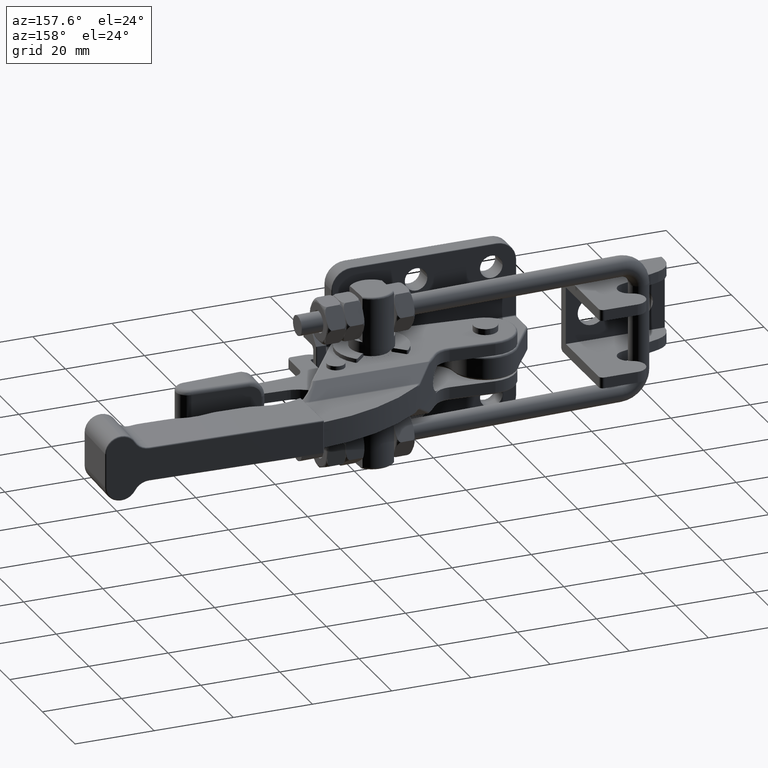
[diagram: clean part render]
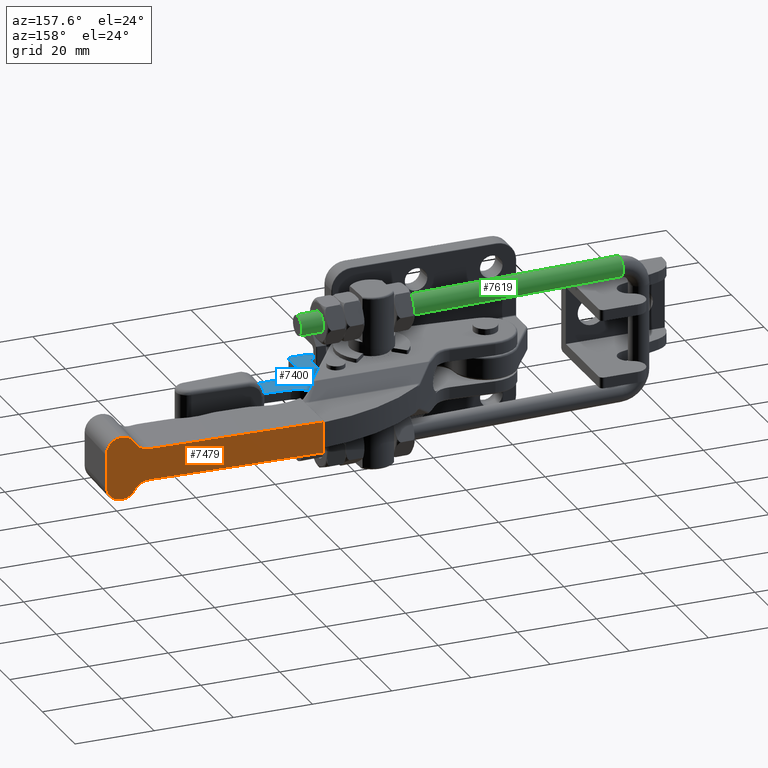
[diagram: same view with three faces highlighted in distinct colors, each labeled with its STEP entity id]
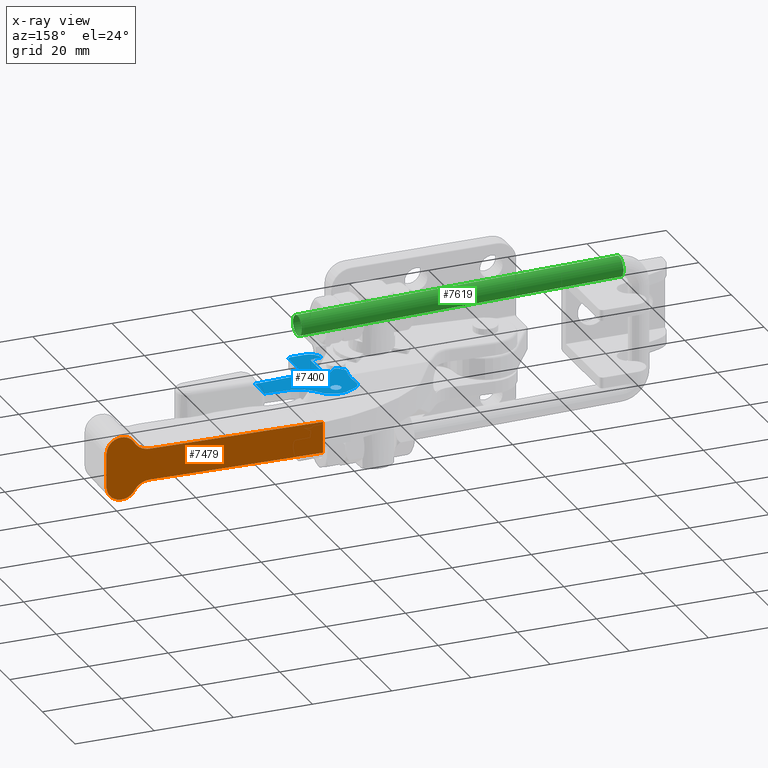
[diagram: x-ray of the same camera — body ghosted, the three highlighted faces saturated]
A machine part, auxiliary view with three faces highlighted in distinct colors.
The next image is the same camera in x-ray (body ghosted, the three faces saturated) — at least one of them is partly hidden behind the body in this view.
Their STEP definitions:

[orange] entity #7479 — the highlighted planar face has unit normal (0.0279, 0.9996, 0).
#640=PLANE('',#8269);
#969=LINE('',#16942,#1384);
#970=LINE('',#16947,#1385);
#971=LINE('',#16949,#1386);
#972=LINE('',#16955,#1387);
#973=LINE('',#16959,#1388);
#974=LINE('',#16963,#1389);
#1384=VECTOR('',#10108,7.9);
#1385=VECTOR('',#10115,43.4044957552724);
#1386=VECTOR('',#10116,43.4044957553423);
#1387=VECTOR('',#10121,0.0717967697818654);
#1388=VECTOR('',#10124,8.5);
#1389=VECTOR('',#10127,0.0717967697818654);
#1993=FACE_OUTER_BOUND('',#2525,.T.);
#2525=EDGE_LOOP('',(#6298,#6299,#6300,#6301,#6302,#6303,#6304,#6305,#6306,
#6307,#6308,#6309));
#3032=CIRCLE('',#8270,4.3);
#3033=CIRCLE('',#8271,3.7);
#3034=CIRCLE('',#8272,3.7);
#3035=CIRCLE('',#8273,3.7);
#3036=CIRCLE('',#8274,3.7);
#3037=CIRCLE('',#8275,4.3);
#3662=VERTEX_POINT('',#16940);
#3663=VERTEX_POINT('',#16941);
#3664=VERTEX_POINT('',#16946);
#3665=VERTEX_POINT('',#16948);
#3666=VERTEX_POINT('',#16950);
#3667=VERTEX_POINT('',#16952);
#3668=VERTEX_POINT('',#16954);
#3669=VERTEX_POINT('',#16956);
#3670=VERTEX_POINT('',#16958);
#3671=VERTEX_POINT('',#16960);
#3672=VERTEX_POINT('',#16962);
#3673=VERTEX_POINT('',#16964);
#4572=EDGE_CURVE('',#3662,#3663,#969,.T.);
#4575=EDGE_CURVE('',#3663,#3664,#970,.T.);
#4576=EDGE_CURVE('',#3665,#3662,#971,.T.);
#4577=EDGE_CURVE('',#3666,#3665,#3032,.T.);
#4578=EDGE_CURVE('',#3667,#3666,#3033,.T.);
#4579=EDGE_CURVE('',#3668,#3667,#972,.T.);
#4580=EDGE_CURVE('',#3669,#3668,#3034,.T.);
#4581=EDGE_CURVE('',#3670,#3669,#973,.T.);
#4582=EDGE_CURVE('',#3671,#3670,#3035,.T.);
#4583=EDGE_CURVE('',#3672,#3671,#974,.T.);
#4584=EDGE_CURVE('',#3673,#3672,#3036,.T.);
#4585=EDGE_CURVE('',#3664,#3673,#3037,.T.);
#6298=ORIENTED_EDGE('',*,*,#4575,.F.);
#6299=ORIENTED_EDGE('',*,*,#4572,.F.);
#6300=ORIENTED_EDGE('',*,*,#4576,.F.);
#6301=ORIENTED_EDGE('',*,*,#4577,.F.);
#6302=ORIENTED_EDGE('',*,*,#4578,.F.);
#6303=ORIENTED_EDGE('',*,*,#4579,.F.);
#6304=ORIENTED_EDGE('',*,*,#4580,.F.);
#6305=ORIENTED_EDGE('',*,*,#4581,.F.);
#6306=ORIENTED_EDGE('',*,*,#4582,.F.);
#6307=ORIENTED_EDGE('',*,*,#4583,.F.);
#6308=ORIENTED_EDGE('',*,*,#4584,.F.);
#6309=ORIENTED_EDGE('',*,*,#4585,.F.);
#7479=ADVANCED_FACE('',(#1993),#640,.T.);
#8269=AXIS2_PLACEMENT_3D('',#16945,#10113,#10114);
#8270=AXIS2_PLACEMENT_3D('',#16951,#10117,#10118);
#8271=AXIS2_PLACEMENT_3D('',#16953,#10119,#10120);
#8272=AXIS2_PLACEMENT_3D('',#16957,#10122,#10123);
#8273=AXIS2_PLACEMENT_3D('',#16961,#10125,#10126);
#8274=AXIS2_PLACEMENT_3D('',#16965,#10128,#10129);
#8275=AXIS2_PLACEMENT_3D('',#16966,#10130,#10131);
#10108=DIRECTION('',(0.,0.,-1.));
#10113=DIRECTION('center_axis',(0.033459756340951,0.99944006558953,0.));
#10114=DIRECTION('ref_axis',(0.99944006558953,-0.0334597563409497,0.));
#10115=DIRECTION('',(0.99944006558953,-0.033459756340951,-7.69832805450923E-12));
#10116=DIRECTION('',(-0.99944006558953,0.033459756340951,-3.04647407040009E-12));
#10117=DIRECTION('center_axis',(0.033459756340951,0.99944006558953,0.));
#10118=DIRECTION('ref_axis',(0.865540486390921,-0.0289769989967188,-0.499999999947312));
#10119=DIRECTION('center_axis',(-0.033459756340951,-0.99944006558953,0.));
#10120=DIRECTION('ref_axis',(0.,0.,1.));
#10121=DIRECTION('',(-0.999440065589528,0.0334597563410209,8.65951067403024E-14));
#10122=DIRECTION('center_axis',(-0.033459756340951,-0.99944006558953,0.));
#10123=DIRECTION('ref_axis',(0.99944006558953,-0.033459756340951,1.99240023878706E-14));
#10124=DIRECTION('',(0.,0.,1.));
#10125=DIRECTION('center_axis',(-0.033459756340951,-0.99944006558953,0.));
#10126=DIRECTION('ref_axis',(0.,0.,-1.));
#10127=DIRECTION('',(0.999440065589528,-0.0334597563410209,4.57716992770213E-13));
#10128=DIRECTION('center_axis',(-0.033459756340951,-0.99944006558953,0.));
#10129=DIRECTION('ref_axis',(-0.865540486501267,0.0289769990004131,-0.499999999756081));
#10130=DIRECTION('center_axis',(0.033459756340951,0.99944006558953,0.));
#10131=DIRECTION('ref_axis',(0.,0.,1.));
#16940=CARTESIAN_POINT('',(53.02818121914,28.51133362947,3.95));
#16941=CARTESIAN_POINT('',(53.02818121914,28.51133362947,-3.95));
#16942=CARTESIAN_POINT('',(53.02818121914,28.51133362947,3.95));
#16945=CARTESIAN_POINT('Origin',(107.4022140252,26.69097245764,-6.65));
#16946=CARTESIAN_POINT('',(96.40837330367,27.0590297774,-3.950000000334));
#16947=CARTESIAN_POINT('',(53.02818121914,28.51133362947,-3.95));
#16948=CARTESIAN_POINT('',(96.40837330374,27.0590297774,3.95));
#16949=CARTESIAN_POINT('',(96.40837330371,27.0590297774,3.950000000132));
#16950=CARTESIAN_POINT('',(100.1301973952,26.93442868171,6.100000000226));
#16951=CARTESIAN_POINT('Origin',(96.40837330374,27.0590297774,8.25));
#16952=CARTESIAN_POINT('',(103.3326971946,26.82721378543,7.95));
#16953=CARTESIAN_POINT('Origin',(103.3326971946,26.82721378543,4.25));
#16954=CARTESIAN_POINT('',(103.4044537629,26.82481148301,7.95));
#16955=CARTESIAN_POINT('',(103.4044537629,26.82481148301,7.95));
#16956=CARTESIAN_POINT('',(107.1023820056,26.70101038455,4.25));
#16957=CARTESIAN_POINT('Origin',(103.4044537629,26.82481148301,4.25));
#16958=CARTESIAN_POINT('',(107.1023820056,26.70101038455,-4.25));
#16959=CARTESIAN_POINT('',(107.1023820056,26.70101038455,-4.25));
#16960=CARTESIAN_POINT('',(103.4044537629,26.82481148301,-7.95));
#16961=CARTESIAN_POINT('Origin',(103.4044537629,26.82481148301,-4.25));
#16962=CARTESIAN_POINT('',(103.3326971946,26.82721378543,-7.95));
#16963=CARTESIAN_POINT('',(103.3326971946,26.82721378543,-7.95));
#16964=CARTESIAN_POINT('',(100.130197394751,26.9344286817277,-6.09999999940768));
#16965=CARTESIAN_POINT('Origin',(103.3326971946,26.82721378543,-4.25));
#16966=CARTESIAN_POINT('Origin',(96.40837330374,27.0590297774,-8.25));

[blue] entity #7400 — the highlighted planar face has unit normal (0, -0, 1).
#336=ELLIPSE('',#8128,0.931680394189339,0.86962262095289);
#337=ELLIPSE('',#8129,1.07424007220487,1.03544217802055);
#391=FACE_BOUND('',#2430,.T.);
#606=PLANE('',#8127);
#859=LINE('',#13940,#1274);
#860=LINE('',#13944,#1275);
#861=LINE('',#13946,#1276);
#862=LINE('',#13948,#1277);
#863=LINE('',#13952,#1278);
#864=LINE('',#13954,#1279);
#865=LINE('',#13958,#1280);
#866=LINE('',#13966,#1281);
#867=LINE('',#13970,#1282);
#868=LINE('',#13974,#1283);
#869=LINE('',#13978,#1284);
#870=LINE('',#13980,#1285);
#871=LINE('',#13982,#1286);
#872=LINE('',#13986,#1287);
#873=LINE('',#13990,#1288);
#874=LINE('',#13994,#1289);
#875=LINE('',#13998,#1290);
#876=LINE('',#14000,#1291);
#877=LINE('',#14002,#1292);
#878=LINE('',#14003,#1293);
#1274=VECTOR('',#9722,5.81787995337108);
#1275=VECTOR('',#9725,5.66395595321554);
#1276=VECTOR('',#9726,0.0500002441401112);
#1277=VECTOR('',#9727,0.871001100207913);
#1278=VECTOR('',#9730,2.69563757804621);
#1279=VECTOR('',#9731,2.5000000000007);
#1280=VECTOR('',#9734,2.60046959183549);
#1281=VECTOR('',#9741,1.39076461061198);
#1282=VECTOR('',#9744,1.50000000000237);
#1283=VECTOR('',#9747,7.195121135286);
#1284=VECTOR('',#9750,0.0825007557231912);
#1285=VECTOR('',#9751,0.0980171403285755);
#1286=VECTOR('',#9752,2.);
#1287=VECTOR('',#9755,0.912785653911317);
#1288=VECTOR('',#9758,3.3859652546343);
#1289=VECTOR('',#9761,6.52572045008);
#1290=VECTOR('',#9764,3.07121529801118);
#1291=VECTOR('',#9765,0.879420633335287);
#1292=VECTOR('',#9766,0.0502709366243459);
#1293=VECTOR('',#9767,5.81635751149553);
#1914=FACE_OUTER_BOUND('',#2429,.T.);
#2429=EDGE_LOOP('',(#5888,#5889,#5890,#5891,#5892,#5893,#5894,#5895,#5896,
#5897,#5898,#5899,#5900,#5901,#5902,#5903,#5904,#5905,#5906,#5907,#5908,
#5909,#5910,#5911,#5912,#5913,#5914,#5915,#5916,#5917,#5918,#5919,#5920,
#5921));
#2430=EDGE_LOOP('',(#5922));
#2967=CIRCLE('',#8126,1.3);
#2968=CIRCLE('',#8130,8.);
#2969=CIRCLE('',#8131,3.510682513192);
#2970=CIRCLE('',#8132,3.);
#2971=CIRCLE('',#8133,15.);
#2972=CIRCLE('',#8134,1.);
#2973=CIRCLE('',#8135,1.);
#2974=CIRCLE('',#8136,1.025101473885);
#2975=CIRCLE('',#8137,0.5);
#2976=CIRCLE('',#8138,0.5);
#2977=CIRCLE('',#8139,3.);
#2978=CIRCLE('',#8140,1.);
#2979=CIRCLE('',#8141,3.);
#3522=VERTEX_POINT('',#13933);
#3523=VERTEX_POINT('',#13936);
#3524=VERTEX_POINT('',#13937);
#3525=VERTEX_POINT('',#13939);
#3526=VERTEX_POINT('',#13941);
#3527=VERTEX_POINT('',#13943);
#3528=VERTEX_POINT('',#13945);
#3529=VERTEX_POINT('',#13947);
#3530=VERTEX_POINT('',#13949);
#3531=VERTEX_POINT('',#13951);
#3532=VERTEX_POINT('',#13953);
#3533=VERTEX_POINT('',#13955);
#3534=VERTEX_POINT('',#13957);
#3535=VERTEX_POINT('',#13959);
#3536=VERTEX_POINT('',#13961);
#3537=VERTEX_POINT('',#13963);
#3538=VERTEX_POINT('',#13965);
#3539=VERTEX_POINT('',#13967);
#3540=VERTEX_POINT('',#13969);
#3541=VERTEX_POINT('',#13971);
#3542=VERTEX_POINT('',#13973);
#3543=VERTEX_POINT('',#13975);
#3544=VERTEX_POINT('',#13977);
#3545=VERTEX_POINT('',#13979);
#3546=VERTEX_POINT('',#13981);
#3547=VERTEX_POINT('',#13983);
#3548=VERTEX_POINT('',#13985);
#3549=VERTEX_POINT('',#13987);
#3550=VERTEX_POINT('',#13989);
#3551=VERTEX_POINT('',#13991);
#3552=VERTEX_POINT('',#13993);
#3553=VERTEX_POINT('',#13995);
#3554=VERTEX_POINT('',#13997);
#3555=VERTEX_POINT('',#13999);
#3556=VERTEX_POINT('',#14001);
#4362=EDGE_CURVE('',#3522,#3522,#2967,.T.);
#4363=EDGE_CURVE('',#3523,#3524,#336,.T.);
#4364=EDGE_CURVE('',#3523,#3525,#859,.T.);
#4365=EDGE_CURVE('',#3526,#3525,#337,.T.);
#4366=EDGE_CURVE('',#3527,#3526,#860,.T.);
#4367=EDGE_CURVE('',#3527,#3528,#861,.T.);
#4368=EDGE_CURVE('',#3528,#3529,#862,.T.);
#4369=EDGE_CURVE('',#3529,#3530,#2968,.T.);
#4370=EDGE_CURVE('',#3530,#3531,#863,.T.);
#4371=EDGE_CURVE('',#3531,#3532,#864,.T.);
#4372=EDGE_CURVE('',#3532,#3533,#2969,.T.);
#4373=EDGE_CURVE('',#3533,#3534,#865,.T.);
#4374=EDGE_CURVE('',#3534,#3535,#2970,.T.);
#4375=EDGE_CURVE('',#3535,#3536,#2971,.T.);
#4376=EDGE_CURVE('',#3536,#3537,#2972,.T.);
#4377=EDGE_CURVE('',#3537,#3538,#866,.T.);
#4378=EDGE_CURVE('',#3538,#3539,#2973,.T.);
#4379=EDGE_CURVE('',#3539,#3540,#867,.T.);
#4380=EDGE_CURVE('',#3540,#3541,#2974,.T.);
#4381=EDGE_CURVE('',#3541,#3542,#868,.T.);
#4382=EDGE_CURVE('',#3542,#3543,#2975,.T.);
#4383=EDGE_CURVE('',#3543,#3544,#869,.T.);
#4384=EDGE_CURVE('',#3544,#3545,#870,.T.);
#4385=EDGE_CURVE('',#3545,#3546,#871,.T.);
#4386=EDGE_CURVE('',#3546,#3547,#2976,.T.);
#4387=EDGE_CURVE('',#3547,#3548,#872,.T.);
#4388=EDGE_CURVE('',#3548,#3549,#2977,.T.);
#4389=EDGE_CURVE('',#3549,#3550,#873,.T.);
#4390=EDGE_CURVE('',#3550,#3551,#2978,.T.);
#4391=EDGE_CURVE('',#3551,#3552,#874,.T.);
#4392=EDGE_CURVE('',#3552,#3553,#2979,.T.);
#4393=EDGE_CURVE('',#3553,#3554,#875,.T.);
#4394=EDGE_CURVE('',#3554,#3555,#876,.T.);
#4395=EDGE_CURVE('',#3555,#3556,#877,.T.);
#4396=EDGE_CURVE('',#3556,#3524,#878,.T.);
#5888=ORIENTED_EDGE('',*,*,#4363,.F.);
#5889=ORIENTED_EDGE('',*,*,#4364,.T.);
#5890=ORIENTED_EDGE('',*,*,#4365,.F.);
#5891=ORIENTED_EDGE('',*,*,#4366,.F.);
#5892=ORIENTED_EDGE('',*,*,#4367,.T.);
#5893=ORIENTED_EDGE('',*,*,#4368,.T.);
#5894=ORIENTED_EDGE('',*,*,#4369,.T.);
#5895=ORIENTED_EDGE('',*,*,#4370,.T.);
#5896=ORIENTED_EDGE('',*,*,#4371,.T.);
#5897=ORIENTED_EDGE('',*,*,#4372,.T.);
#5898=ORIENTED_EDGE('',*,*,#4373,.T.);
#5899=ORIENTED_EDGE('',*,*,#4374,.T.);
#5900=ORIENTED_EDGE('',*,*,#4375,.T.);
#5901=ORIENTED_EDGE('',*,*,#4376,.T.);
#5902=ORIENTED_EDGE('',*,*,#4377,.T.);
#5903=ORIENTED_EDGE('',*,*,#4378,.T.);
#5904=ORIENTED_EDGE('',*,*,#4379,.T.);
#5905=ORIENTED_EDGE('',*,*,#4380,.T.);
#5906=ORIENTED_EDGE('',*,*,#4381,.T.);
#5907=ORIENTED_EDGE('',*,*,#4382,.T.);
#5908=ORIENTED_EDGE('',*,*,#4383,.T.);
#5909=ORIENTED_EDGE('',*,*,#4384,.T.);
#5910=ORIENTED_EDGE('',*,*,#4385,.T.);
#5911=ORIENTED_EDGE('',*,*,#4386,.T.);
#5912=ORIENTED_EDGE('',*,*,#4387,.T.);
#5913=ORIENTED_EDGE('',*,*,#4388,.T.);
#5914=ORIENTED_EDGE('',*,*,#4389,.T.);
#5915=ORIENTED_EDGE('',*,*,#4390,.T.);
#5916=ORIENTED_EDGE('',*,*,#4391,.T.);
#5917=ORIENTED_EDGE('',*,*,#4392,.T.);
#5918=ORIENTED_EDGE('',*,*,#4393,.T.);
#5919=ORIENTED_EDGE('',*,*,#4394,.T.);
#5920=ORIENTED_EDGE('',*,*,#4395,.T.);
#5921=ORIENTED_EDGE('',*,*,#4396,.T.);
#5922=ORIENTED_EDGE('',*,*,#4362,.F.);
#7400=ADVANCED_FACE('',(#1914,#391),#606,.T.);
#8126=AXIS2_PLACEMENT_3D('',#13934,#9716,#9717);
#8127=AXIS2_PLACEMENT_3D('',#13935,#9718,#9719);
#8128=AXIS2_PLACEMENT_3D('',#13938,#9720,#9721);
#8129=AXIS2_PLACEMENT_3D('',#13942,#9723,#9724);
#8130=AXIS2_PLACEMENT_3D('',#13950,#9728,#9729);
#8131=AXIS2_PLACEMENT_3D('',#13956,#9732,#9733);
#8132=AXIS2_PLACEMENT_3D('',#13960,#9735,#9736);
#8133=AXIS2_PLACEMENT_3D('',#13962,#9737,#9738);
#8134=AXIS2_PLACEMENT_3D('',#13964,#9739,#9740);
#8135=AXIS2_PLACEMENT_3D('',#13968,#9742,#9743);
#8136=AXIS2_PLACEMENT_3D('',#13972,#9745,#9746);
#8137=AXIS2_PLACEMENT_3D('',#13976,#9748,#9749);
#8138=AXIS2_PLACEMENT_3D('',#13984,#9753,#9754);
#8139=AXIS2_PLACEMENT_3D('',#13988,#9756,#9757);
#8140=AXIS2_PLACEMENT_3D('',#13992,#9759,#9760);
#8141=AXIS2_PLACEMENT_3D('',#13996,#9762,#9763);
#9716=DIRECTION('center_axis',(0.,0.,1.));
#9717=DIRECTION('ref_axis',(1.,0.,0.));
#9718=DIRECTION('center_axis',(0.,0.,1.));
#9719=DIRECTION('ref_axis',(1.,0.,0.));
#9720=DIRECTION('center_axis',(0.000811307008833749,2.54037706365979E-5,
0.999999670567739));
#9721=DIRECTION('ref_axis',(0.0133113623831352,-0.999911399784145,1.4601923068817E-5));
#9722=DIRECTION('',(0.0325738383121399,0.999469331724398,0.));
#9723=DIRECTION('center_axis',(-1.88903502953595E-5,8.96547421017621E-7,
0.999999999821175));
#9724=DIRECTION('ref_axis',(0.999026600073069,-0.0441118123499607,1.89115107647429E-5));
#9725=DIRECTION('',(0.998629534754574,-0.0523359562429486,0.));
#9726=DIRECTION('',(-0.998461107912403,0.0554564332276902,0.));
#9727=DIRECTION('',(-0.993613897540945,0.112833605869405,0.));
#9728=DIRECTION('center_axis',(0.,0.,-1.));
#9729=DIRECTION('ref_axis',(-0.166756218381195,-0.985998155997872,0.));
#9730=DIRECTION('',(-0.615348520352691,0.788255160782188,0.));
#9731=DIRECTION('',(-0.927035031197697,0.374974733725199,0.));
#9732=DIRECTION('center_axis',(0.,0.,1.));
#9733=DIRECTION('ref_axis',(0.374974733724786,0.927035031197865,0.));
#9734=DIRECTION('',(-0.89373293059749,-0.448599430188695,0.));
#9735=DIRECTION('center_axis',(0.,0.,1.));
#9736=DIRECTION('ref_axis',(-0.448599430188215,0.893732930597731,0.));
#9737=DIRECTION('center_axis',(0.,0.,-1.));
#9738=DIRECTION('ref_axis',(0.989343464608691,-0.145600511798799,0.));
#9739=DIRECTION('center_axis',(0.,0.,1.));
#9740=DIRECTION('ref_axis',(-0.958352474759903,0.285588049682701,0.));
#9741=DIRECTION('',(0.707106781186498,-0.707106781186597,0.));
#9742=DIRECTION('center_axis',(0.,0.,1.));
#9743=DIRECTION('ref_axis',(-0.707106781188698,-0.707106781184398,0.));
#9744=DIRECTION('',(0.707106781186498,0.707106781186597,0.));
#9745=DIRECTION('center_axis',(0.,0.,-1.));
#9746=DIRECTION('ref_axis',(-0.707106781184998,0.707106781188098,0.));
#9747=DIRECTION('',(4.246396559998E-14,-1.,0.));
#9748=DIRECTION('center_axis',(0.,0.,-1.));
#9749=DIRECTION('ref_axis',(1.,-6.394884621841E-14,0.));
#9750=DIRECTION('',(-0.961346686361667,-0.27534078633839,0.));
#9751=DIRECTION('',(-0.995184726672337,-0.0980171403281436,0.));
#9752=DIRECTION('',(-1.,0.,0.));
#9753=DIRECTION('center_axis',(0.,0.,1.));
#9754=DIRECTION('ref_axis',(0.,1.,0.));
#9755=DIRECTION('',(0.513336470446907,-0.858187431805612,0.));
#9756=DIRECTION('center_axis',(0.,0.,1.));
#9757=DIRECTION('ref_axis',(-0.858187431805128,-0.513336470447717,0.));
#9758=DIRECTION('',(1.,0.,0.));
#9759=DIRECTION('center_axis',(0.,0.,1.));
#9760=DIRECTION('ref_axis',(0.,-1.,0.));
#9761=DIRECTION('',(0.,1.,0.));
#9762=DIRECTION('center_axis',(0.,0.,-1.));
#9763=DIRECTION('ref_axis',(-1.,3.967196941327E-14,0.));
#9764=DIRECTION('',(0.998629534754574,0.0523359562429386,0.));
#9765=DIRECTION('',(0.998629534754572,0.0523359562429785,0.));
#9766=DIRECTION('',(0.998714205363826,0.0506945362391314,0.));
#9767=DIRECTION('',(0.998629534754557,0.0523359562432578,0.));
#13933=CARTESIAN_POINT('',(-1.3,0.,1.25));
#13934=CARTESIAN_POINT('Origin',(0.,0.,1.25));
#13935=CARTESIAN_POINT('Origin',(0.,0.,1.25));
#13936=CARTESIAN_POINT('',(16.6459640308836,-9.00495326394849,1.24999852728849));
#13937=CARTESIAN_POINT('',(16.6468022911,-9.089696500545,1.25));
#13938=CARTESIAN_POINT('Origin',(17.5150682126365,-9.03917128969078,1.2492942860093));
#13939=CARTESIAN_POINT('',(16.8354618762808,-3.19016025656523,1.25));
#13940=CARTESIAN_POINT('',(18.0626345912321,34.4634156459615,1.25));
#13941=CARTESIAN_POINT('',(16.83630874837,-3.170438059809,1.25));
#13942=CARTESIAN_POINT('Origin',(17.9091068650356,-3.22603282412631,1.25002031537556));
#13943=CARTESIAN_POINT('',(11.18011504994,-2.874009508879,1.25));
#13944=CARTESIAN_POINT('',(11.18011504994,-2.874009508879,1.25));
#13945=CARTESIAN_POINT('',(11.13019175078,-2.871236673678,1.25));
#13946=CARTESIAN_POINT('',(11.18011504994,-2.874009508879,1.25));
#13947=CARTESIAN_POINT('',(10.26475295284,-2.772958478825,1.25));
#13948=CARTESIAN_POINT('',(11.13019175078,-2.871236673678,1.25));
#13949=CARTESIAN_POINT('',(5.29276141363,0.1922386063358,1.25));
#13950=CARTESIAN_POINT('Origin',(11.59880269989,5.115026769157,1.25));
#13951=CARTESIAN_POINT('',(3.634004818572,2.317088838829,1.25));
#13952=CARTESIAN_POINT('',(5.29276141363,0.1922386063359,1.25));
#13953=CARTESIAN_POINT('',(1.316417240577,3.254525673142,1.25));
#13954=CARTESIAN_POINT('',(3.634004818572,2.317088838829,1.25));
#13955=CARTESIAN_POINT('',(-1.574890174993,3.137612570911,1.25));
#13956=CARTESIAN_POINT('Origin',(0.,0.,1.25));
#13957=CARTESIAN_POINT('',(-3.899015484234,1.971043393791,1.25));
#13958=CARTESIAN_POINT('',(-1.574890174992,3.137612570912,1.25));
#13959=CARTESIAN_POINT('',(-5.516811547025,-1.176104438936,1.25));
#13960=CARTESIAN_POINT('Origin',(-2.553217193668,-0.7101553980015,1.25));
#13961=CARTESIAN_POINT('',(-5.959496192401,-7.789670388709,1.25));
#13962=CARTESIAN_POINT('Origin',(-20.33478331382,-3.505849643549,1.25));
#13963=CARTESIAN_POINT('',(-5.708250498825,-8.78236521958,1.25));
#13964=CARTESIAN_POINT('Origin',(-5.00114371764,-8.075258438392,1.25));
#13965=CARTESIAN_POINT('',(-4.724831411627,-9.765784306778,1.25));
#13966=CARTESIAN_POINT('',(-5.708250498826,-8.782365219579,1.25));
#13967=CARTESIAN_POINT('',(-3.310617849255,-9.76578430678,1.25));
#13968=CARTESIAN_POINT('Origin',(-4.01772463044,-9.058677525592,1.25));
#13969=CARTESIAN_POINT('',(-2.249957677474,-8.705124134998,1.25));
#13970=CARTESIAN_POINT('',(-3.310617849254,-9.765784306779,1.25));
#13971=CARTESIAN_POINT('',(-0.5000000000009,-9.429980338594,1.25));
#13972=CARTESIAN_POINT('Origin',(-1.525101473886,-9.429980338587,1.25));
#13973=CARTESIAN_POINT('',(-0.5,-16.62510147388,1.25));
#13974=CARTESIAN_POINT('',(-0.5000000000003,-9.42998033859,1.25));
#13975=CARTESIAN_POINT('',(-0.8231430108569,-17.09277829113,1.25));
#13976=CARTESIAN_POINT('Origin',(-1.,-16.62510147388,1.25));
#13977=CARTESIAN_POINT('',(-0.9024548389921,-17.11549411409,1.25));
#13978=CARTESIAN_POINT('',(-0.823143010858,-17.09277829113,1.25));
#13979=CARTESIAN_POINT('',(-1.,-17.12510147388,1.25));
#13980=CARTESIAN_POINT('',(-0.9024548389921,-17.11549411409,1.25));
#13981=CARTESIAN_POINT('',(-3.,-17.12510147388,1.25));
#13982=CARTESIAN_POINT('',(-1.,-17.12510147388,1.25));
#13983=CARTESIAN_POINT('',(-3.429093715902,-17.88176970911,1.25));
#13984=CARTESIAN_POINT('Origin',(-3.,-17.62510147388,1.25));
#13985=CARTESIAN_POINT('',(-2.96052755005,-18.66511088523,1.25));
#13986=CARTESIAN_POINT('',(-3.429093715903,-17.88176970911,1.25));
#13987=CARTESIAN_POINT('',(-0.3859652546343,-20.12510147388,1.25));
#13988=CARTESIAN_POINT('Origin',(-0.3859652546341,-17.12510147388,1.25));
#13989=CARTESIAN_POINT('',(3.,-20.12510147388,1.25));
#13990=CARTESIAN_POINT('',(-0.3859652546342,-20.12510147388,1.25));
#13991=CARTESIAN_POINT('',(4.,-19.12510147388,1.25));
#13992=CARTESIAN_POINT('Origin',(3.,-19.12510147388,1.25));
#13993=CARTESIAN_POINT('',(4.,-12.5993810238,1.25));
#13994=CARTESIAN_POINT('',(4.,-19.12510147388,1.25));
#13995=CARTESIAN_POINT('',(6.842992131271,-9.603492419536,1.25));
#13996=CARTESIAN_POINT('Origin',(7.,-12.5993810238,1.25));
#13997=CARTESIAN_POINT('',(9.909998435455,-9.442757430086,1.25));
#13998=CARTESIAN_POINT('',(6.842992131271,-9.603492419536,1.25));
#13999=CARTESIAN_POINT('',(10.7882095515629,-9.39665002681402,1.25));
#14000=CARTESIAN_POINT('',(5.21533045060413,-9.68879455364339,1.25));
#14001=CARTESIAN_POINT('',(10.8384137557577,-9.39406030540069,1.25));
#14002=CARTESIAN_POINT('',(5.64584040458199,-9.65759336924919,1.25));
#14003=CARTESIAN_POINT('',(5.67953699046811,-9.66446651976263,1.25));

[green] entity #7619 — the highlighted cylindrical surface (bore or boss wall) has radius 2.5 mm, axis along (0.9994, 0.0349, -0).
#408=FACE_BOUND('',#2666,.T.);
#1685=CYLINDRICAL_SURFACE('',#8531,2.5);
#2133=FACE_OUTER_BOUND('',#2665,.T.);
#2665=EDGE_LOOP('',(#6919));
#2666=EDGE_LOOP('',(#6920));
#3179=CIRCLE('',#8532,2.5);
#3180=CIRCLE('',#8533,2.5);
#3811=VERTEX_POINT('',#20457);
#3812=VERTEX_POINT('',#20459);
#4861=EDGE_CURVE('',#3811,#3811,#3179,.T.);
#4862=EDGE_CURVE('',#3812,#3812,#3180,.T.);
#6919=ORIENTED_EDGE('',*,*,#4861,.F.);
#6920=ORIENTED_EDGE('',*,*,#4862,.T.);
#7619=ADVANCED_FACE('',(#2133,#408),#1685,.T.);
#8531=AXIS2_PLACEMENT_3D('',#20456,#10715,#10716);
#8532=AXIS2_PLACEMENT_3D('',#20458,#10717,#10718);
#8533=AXIS2_PLACEMENT_3D('',#20460,#10719,#10720);
#10715=DIRECTION('center_axis',(1.,0.,0.));
#10716=DIRECTION('ref_axis',(0.,1.,0.));
#10717=DIRECTION('center_axis',(1.,7.11884744652049E-16,0.));
#10718=DIRECTION('ref_axis',(-7.11884744652049E-16,1.,0.));
#10719=DIRECTION('center_axis',(1.,7.11884744652049E-16,0.));
#10720=DIRECTION('ref_axis',(-7.11884744652049E-16,1.,0.));
#20456=CARTESIAN_POINT('Origin',(-38.75,-16.,0.));
#20457=CARTESIAN_POINT('',(43.75,-18.5,3.06161699786838E-16));
#20458=CARTESIAN_POINT('Origin',(43.75,-16.,0.));
#20459=CARTESIAN_POINT('',(-38.75,-18.5,3.06161699786838E-16));
#20460=CARTESIAN_POINT('Origin',(-38.75,-16.,0.));